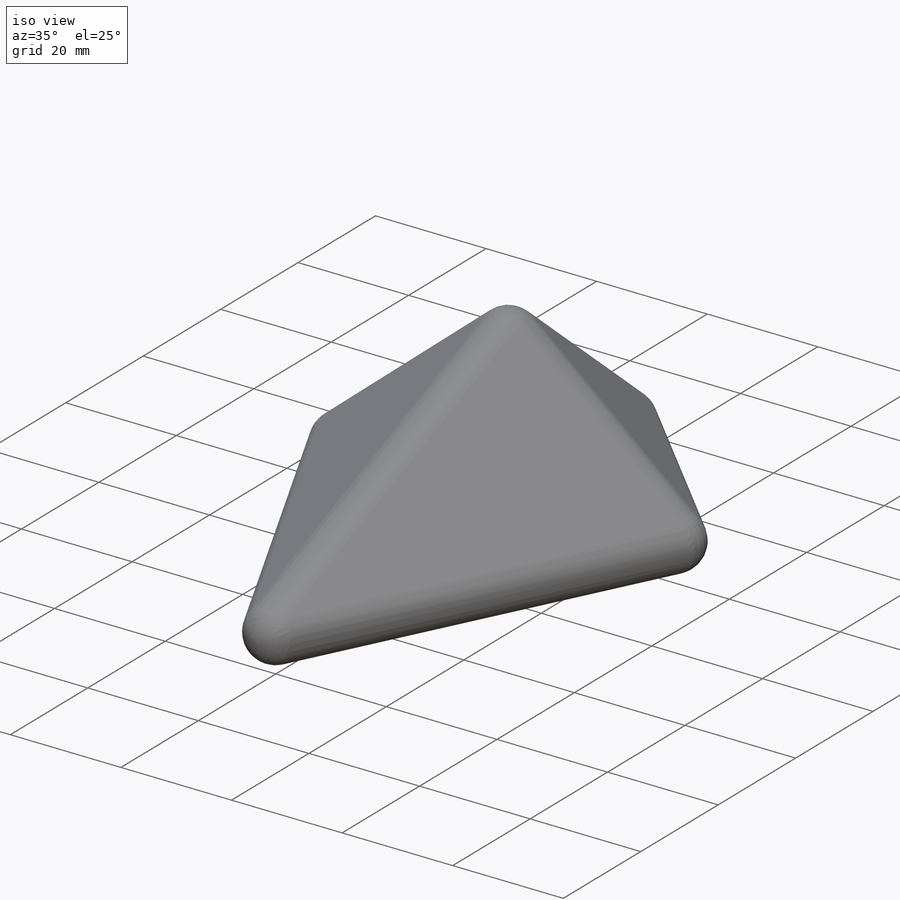
[diagram: iso view]
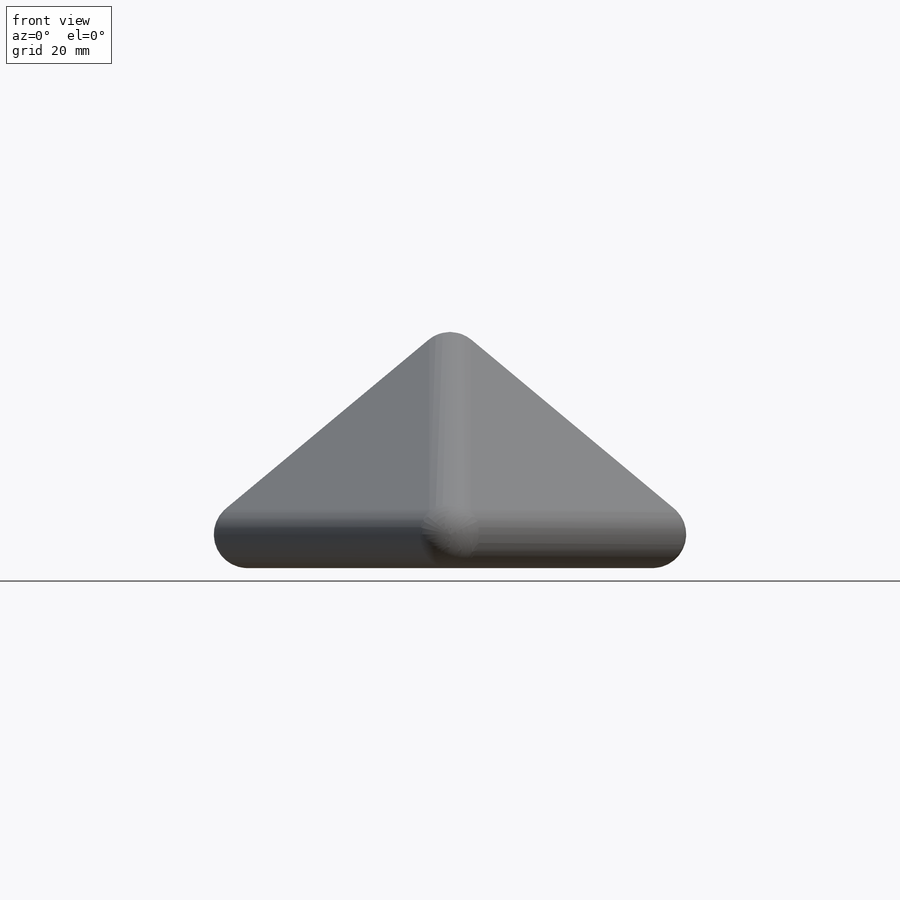
[diagram: front view]
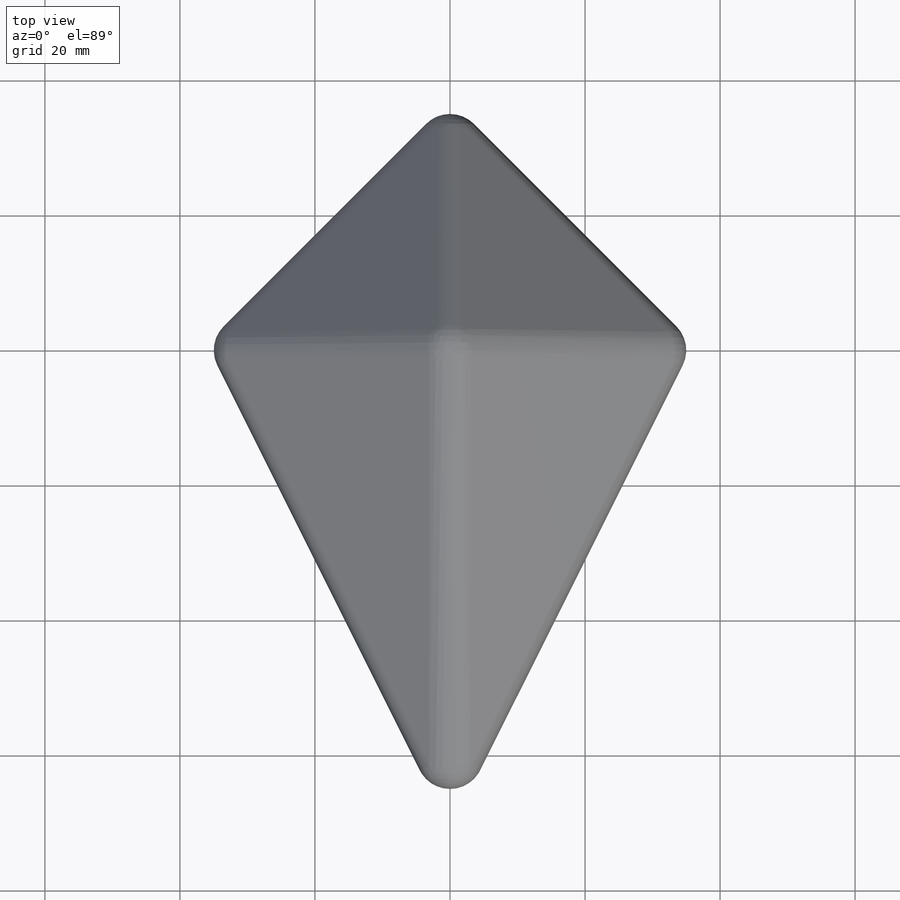
[diagram: top view]
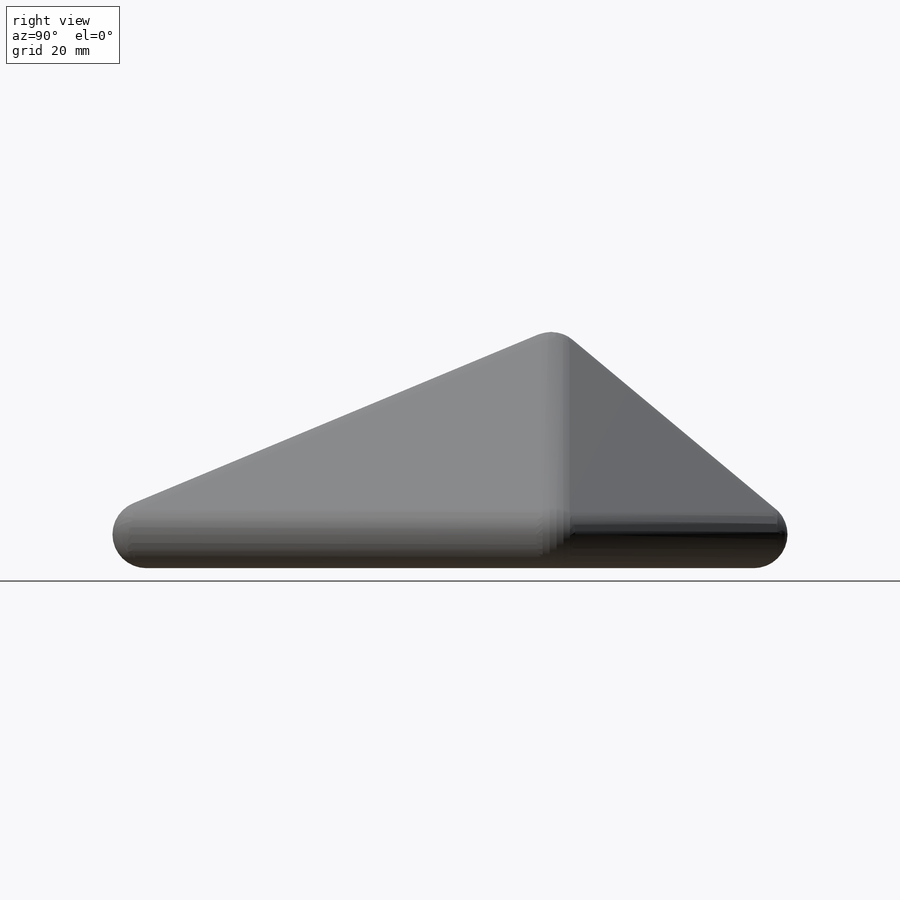
[diagram: right view]
SOLIDWORKS PART (.sldprt)
format: sldprt  version: not decoded by parser v0  size: 603,136 bytes
history: native  units: mm
features: sketch x6, plane x5, extrude x3, fillet x3, material x1, mirror x1, boolean_combine x1 + 2 further entries (+8 scaffold rows collapsed)
feature tree (30):
  scaffold x8  (default folders/planes/origin — collapsed)
  material  "Allgemein"
  plane  "Vorderansicht"
  plane  "Draufsicht"
  plane  "Seitenansicht"
  "Y-Achse"
  "Z-Achse"
  sketch  "Layout_DS"  dims[c1.D1=~13.526074mm c1.D4=5.0mm c2.D1=70.0mm c2.D2=35.0mm c2.D3=100.0mm]
  sketch  "Layout_VA"  dims[c1.D1=15.0mm c1.D2=30.0mm c2.D1=15.0mm c2.D3=~5.081894mm]
  sketch  "Layout_SA"  dims[D1=~7.731098mm]
  plane  "Ebene1"
  sketch  "Skizze7"  dims[D1=~69.662786mm]
  plane  "Ebene2"
  sketch  "Skizze8"  dims[D1=~10.141764mm]
  sketch  "Skizze2"
  extrude  "Aufsatz-Linear austragen1"  Depth=10mm
  fillet  "Verrundung1"  [1 undecoded]
  extrude  "Aufsatz-Linear austragen3"  [1 undecoded]
  extrude  "Aufsatz-Linear austragen4"  [1 undecoded]
  fillet  "Verrundung3"  Radius=5mm
  mirror  "Spiegeln1"
  fillet  "Verrundung5"  Radius=5mm
  boolean_combine  "Kombinieren1"
decode coverage: 8 of 14 modeling features carry decoded parameters; 2 rows unclassified (native names shown)
note: ~ marks probable driven/reference dimensions
note: 3 parameter values undecoded
summary: no parameter record found for 3 features
note: suppression state not decoded; provenance and decode notes live in map.json
